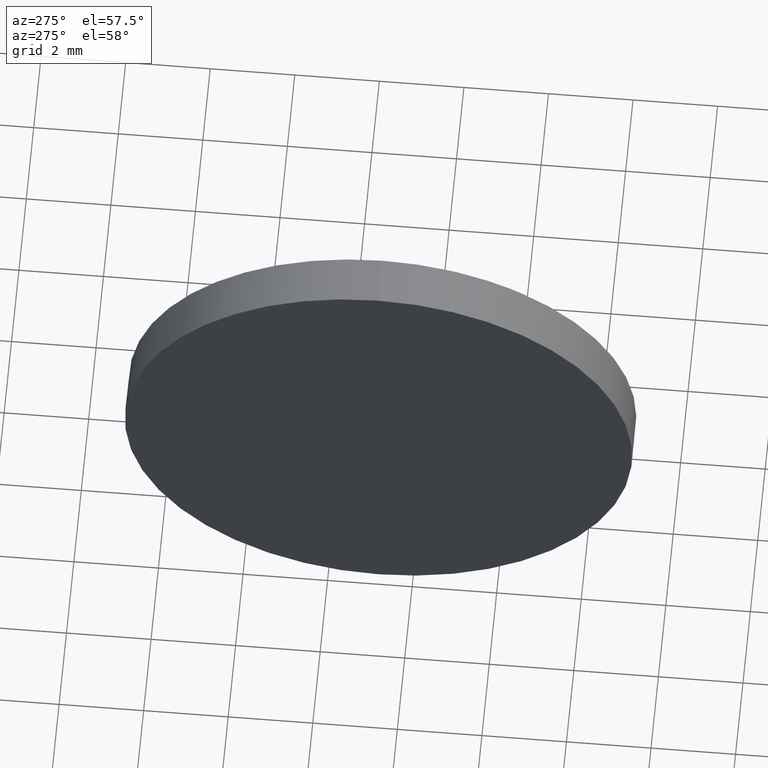
[diagram: clean part render]
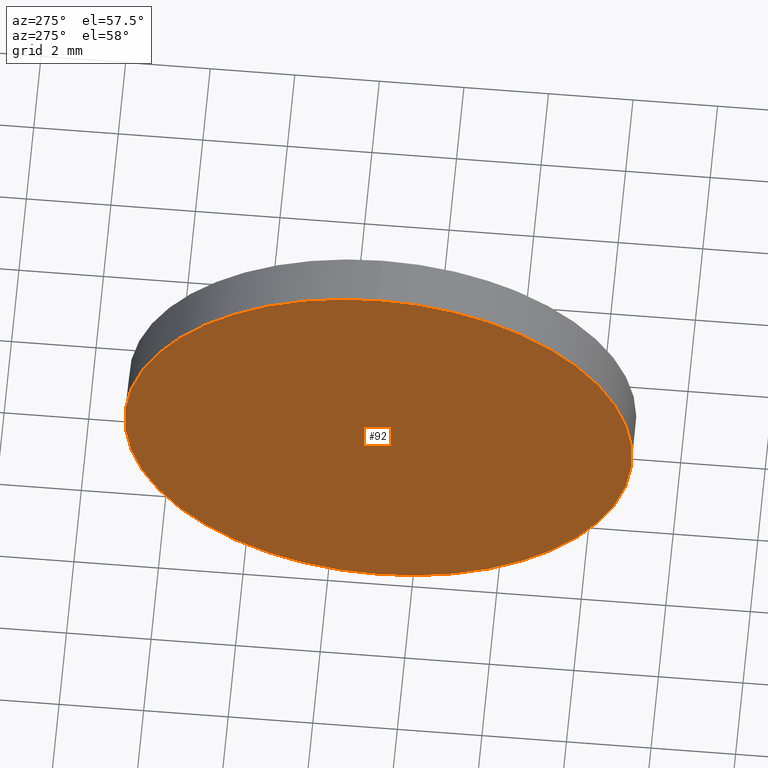
[diagram: same view with one face highlighted and labeled with its STEP entity id]
A machine part, auxiliary view. The second image highlights one B-rep face of the part: STEP entity #92.
In plain terms, the highlighted planar face has unit normal (1, 0, 0).
Its self-contained STEP definition (entity closure, byte-faithful):
#9 = FACE_OUTER_BOUND ( 'NONE', #52, .T. ) ;
#18 = CIRCLE ( 'NONE', #67, 5.999999999999998200 ) ;
#26 = DIRECTION ( 'NONE',  ( 0.0000000000000000000, 0.0000000000000000000, -1.000000000000000000 ) ) ;
#27 = VERTEX_POINT ( 'NONE', #116 ) ;
#42 = CARTESIAN_POINT ( 'NONE',  ( 432.1111950534910300, 54.80641332261154700, -5.999999999999998200 ) ) ;
#51 = ORIENTED_EDGE ( 'NONE', *, *, #91, .T. ) ;
#52 = EDGE_LOOP ( 'NONE', ( #147, #51 ) ) ;
#65 = AXIS2_PLACEMENT_3D ( 'NONE', #119, #69, #81 ) ;
#67 = AXIS2_PLACEMENT_3D ( 'NONE', #154, #155, #141 ) ;
#69 = DIRECTION ( 'NONE',  ( -1.000000000000000000, -0.0000000000000000000, -0.0000000000000000000 ) ) ;
#80 = CARTESIAN_POINT ( 'NONE',  ( 432.1111950534910300, 54.80641332261154700, 0.0000000000000000000 ) ) ;
#81 = DIRECTION ( 'NONE',  ( 0.0000000000000000000, 0.0000000000000000000, 1.000000000000000000 ) ) ;
#91 = EDGE_CURVE ( 'NONE', #109, #27, #138, .T. ) ;
#92 = ADVANCED_FACE ( 'NONE', ( #9 ), #117, .F. ) ;
#109 = VERTEX_POINT ( 'NONE', #42 ) ;
#116 = CARTESIAN_POINT ( 'NONE',  ( 432.1111950534910300, 54.80641332261154700, 5.999999999999998200 ) ) ;
#117 = PLANE ( 'NONE',  #146 ) ;
#119 = CARTESIAN_POINT ( 'NONE',  ( 432.1111950534910300, 54.80641332261154700, 0.0000000000000000000 ) ) ;
#134 = EDGE_CURVE ( 'NONE', #27, #109, #18, .T. ) ;
#138 = CIRCLE ( 'NONE', #65, 5.999999999999998200 ) ;
#141 = DIRECTION ( 'NONE',  ( 0.0000000000000000000, 0.0000000000000000000, 1.000000000000000000 ) ) ;
#146 = AXIS2_PLACEMENT_3D ( 'NONE', #80, #185, #26 ) ;
#147 = ORIENTED_EDGE ( 'NONE', *, *, #134, .T. ) ;
#154 = CARTESIAN_POINT ( 'NONE',  ( 432.1111950534910300, 54.80641332261154700, 0.0000000000000000000 ) ) ;
#155 = DIRECTION ( 'NONE',  ( -1.000000000000000000, -0.0000000000000000000, -0.0000000000000000000 ) ) ;
#185 = DIRECTION ( 'NONE',  ( 1.000000000000000000, 0.0000000000000000000, 0.0000000000000000000 ) ) ;